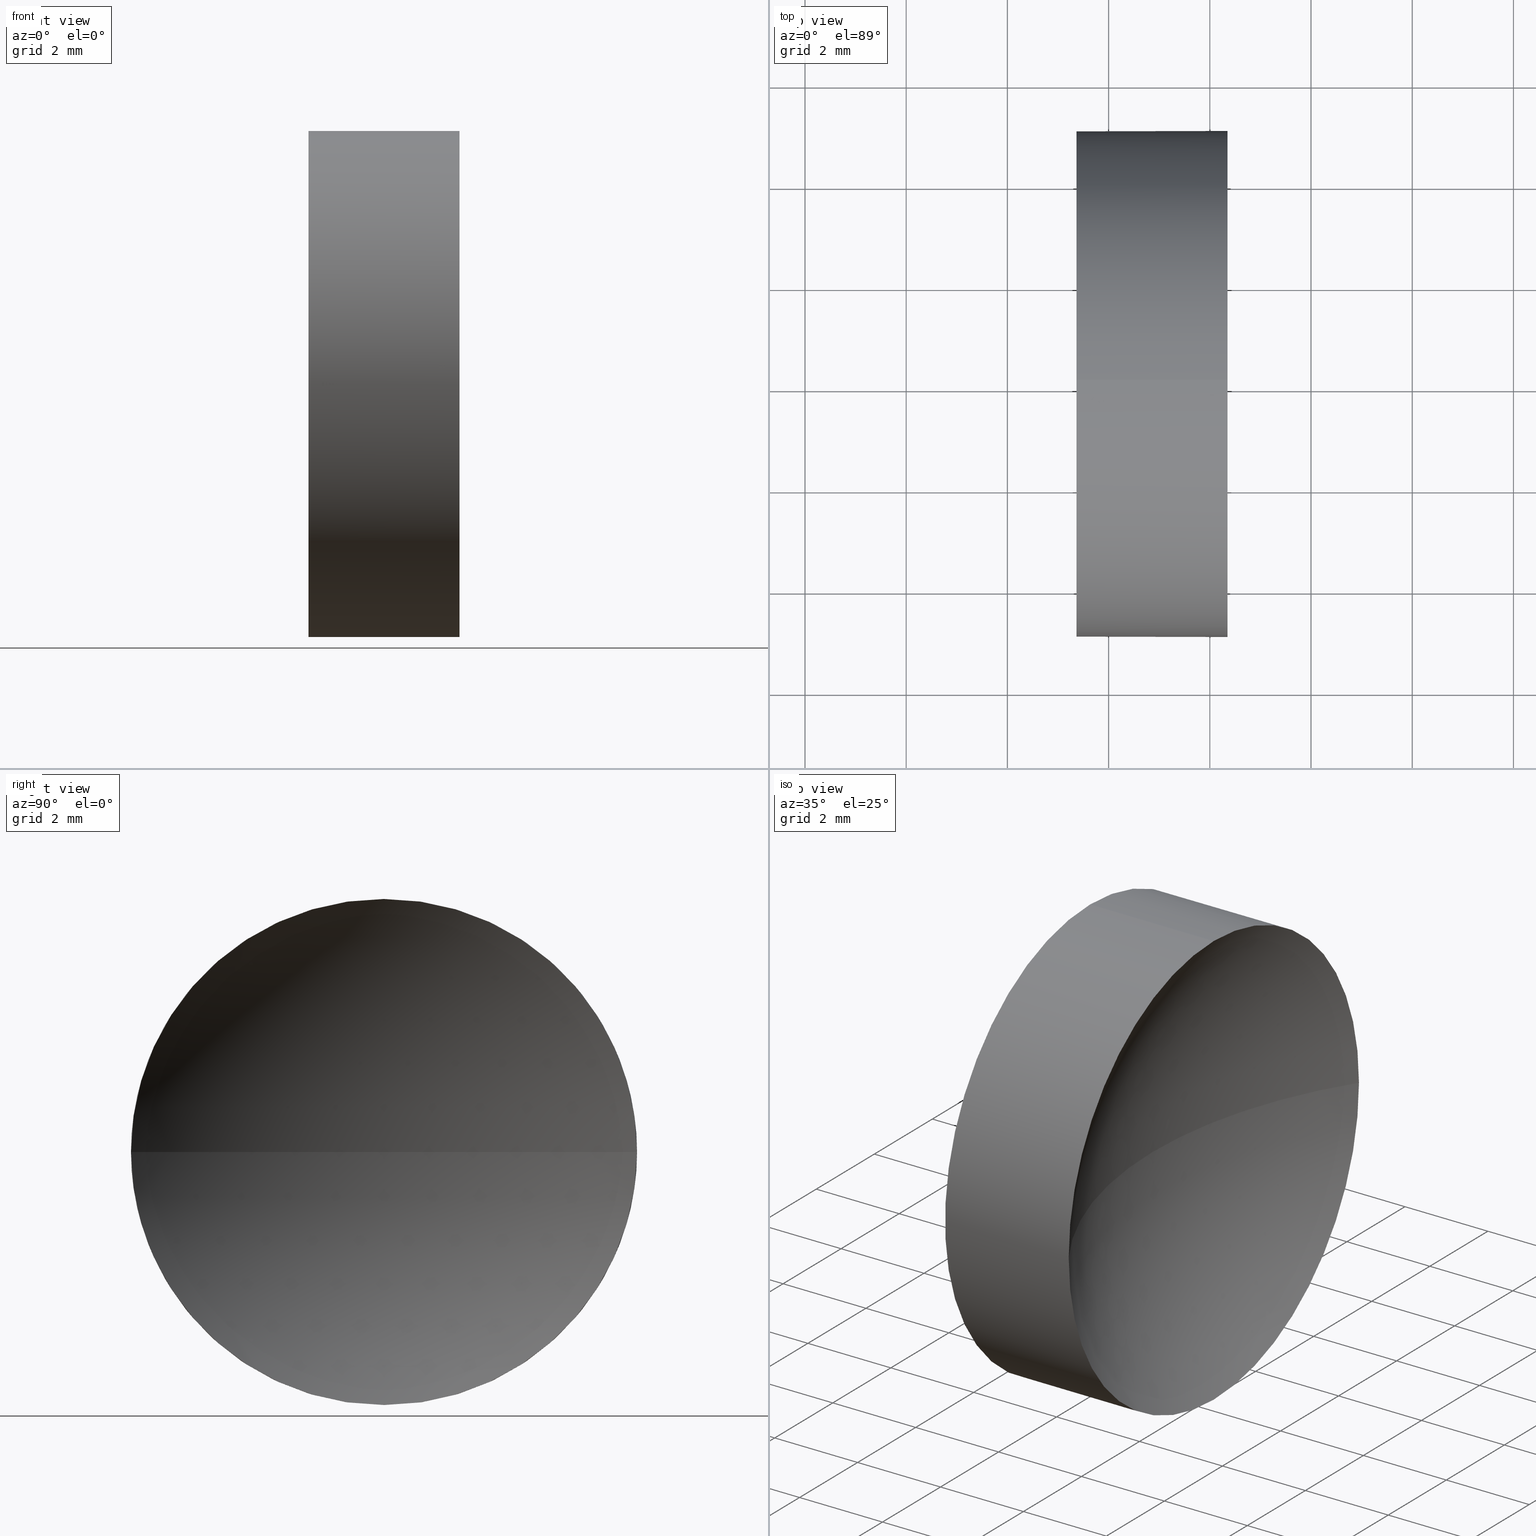
[diagram: canonical four-view strip — front | top / right | iso, engineering-drawing reading convention]
A machine part, canonical four-view strip (front | top / right | iso — engineering-drawing reading convention). The complete STEP part file that produces these views, byte-faithful:
ISO-10303-21;
HEADER;
FILE_DESCRIPTION (( 'STEP AP214' ),
    '1' );
FILE_NAME ('120253.STEP',
    '2019-06-24T09:12:50',
    ( '' ),
    ( '' ),
    'SwSTEP 2.0',
    'SolidWorks 2016',
    '' );
FILE_SCHEMA (( 'AUTOMOTIVE_DESIGN' ));
ENDSEC;

DATA;
#1 = DIRECTION ( 'NONE',  ( -1.000000000000000000, 0.0000000000000000000, 0.0000000000000000000 ) ) ;
#2 = DIRECTION ( 'NONE',  ( -1.000000000000000000, -0.0000000000000000000, -0.0000000000000000000 ) ) ;
#3 = CARTESIAN_POINT ( 'NONE',  ( 44.34889685878980000, 26.06225218280608000, 0.0000000000000000000 ) ) ;
#4 = PRODUCT_DEFINITION_SHAPE ( 'NONE', 'NONE',  #165 ) ;
#5 = MECHANICAL_DESIGN_GEOMETRIC_PRESENTATION_REPRESENTATION (  '', ( #31 ), #41 ) ;
#6 = FILL_AREA_STYLE ('',( #37 ) ) ;
#7 = AXIS2_PLACEMENT_3D ( 'NONE', #131, #122, #137 ) ;
#8 = UNCERTAINTY_MEASURE_WITH_UNIT (LENGTH_MEASURE( 1.000000000000000100E-005 ), #132, 'distance_accuracy_value', 'NONE');
#9 = ADVANCED_FACE ( 'NONE', ( #36 ), #98, .F. ) ;
#10 = PRODUCT_DEFINITION_CONTEXT ( 'detailed design', #19, 'design' ) ;
#11 = VERTEX_POINT ( 'NONE', #69 ) ;
#12 = CARTESIAN_POINT ( 'NONE',  ( 41.36582732549757700, 26.06225218280608000, 0.0000000000000000000 ) ) ;
#13 = AXIS2_PLACEMENT_3D ( 'NONE', #151, #124, #107 ) ;
#14 = DIRECTION ( 'NONE',  ( 0.0000000000000000000, 0.0000000000000000000, 1.000000000000000000 ) ) ;
#15 = ORIENTED_EDGE ( 'NONE', *, *, #160, .T. ) ;
#16 = APPLICATION_PROTOCOL_DEFINITION ( 'draft international standard', 'automotive_design', 1998, #93 ) ;
#17 = EDGE_LOOP ( 'NONE', ( #64, #158, #82, #166 ) ) ;
#18 = DIRECTION ( 'NONE',  ( 0.0000000000000000000, -1.224646799147353200E-016, 1.000000000000000000 ) ) ;
#19 = APPLICATION_CONTEXT ( 'automotive_design' ) ;
#20 = ORIENTED_EDGE ( 'NONE', *, *, #45, .T. ) ;
#21 = ORIENTED_EDGE ( 'NONE', *, *, #141, .F. ) ;
#22 = AXIS2_PLACEMENT_3D ( 'NONE', #12, #118, #14 ) ;
#23 = ORIENTED_EDGE ( 'NONE', *, *, #45, .F. ) ;
#24 = DIRECTION ( 'NONE',  ( 1.000000000000000000, 0.0000000000000000000, 0.0000000000000000000 ) ) ;
#25 = ORIENTED_EDGE ( 'NONE', *, *, #87, .F. ) ;
#26 = DIRECTION ( 'NONE',  ( 0.0000000000000000000, 0.0000000000000000000, 1.000000000000000000 ) ) ;
#27 = PLANE ( 'NONE',  #129 ) ;
#28 = VERTEX_POINT ( 'NONE', #72 ) ;
#29 =( NAMED_UNIT ( * ) SI_UNIT ( $, .STERADIAN. ) SOLID_ANGLE_UNIT ( ) );
#30 = ORIENTED_EDGE ( 'NONE', *, *, #87, .T. ) ;
#31 = STYLED_ITEM ( 'NONE', ( #153 ), #92 ) ;
#32 =( NAMED_UNIT ( * ) PLANE_ANGLE_UNIT ( ) SI_UNIT ( $, .RADIAN. ) );
#33 = SURFACE_SIDE_STYLE ('',( #156 ) ) ;
#34 = AXIS2_PLACEMENT_3D ( 'NONE', #150, #18, #78 ) ;
#35 = VECTOR ( 'NONE', #2, 1000.000000000000000 ) ;
#36 = FACE_OUTER_BOUND ( 'NONE', #17, .T. ) ;
#37 = FILL_AREA_STYLE_COLOUR ( '', #146 ) ;
#38 = FACE_OUTER_BOUND ( 'NONE', #59, .T. ) ;
#39 = CARTESIAN_POINT ( 'NONE',  ( 44.34889685878980000, 26.06225218280608000, -4.999999999999993800 ) ) ;
#40 = CARTESIAN_POINT ( 'NONE',  ( 44.34889685878980000, 31.06225218280607300, 6.123233995736756400E-016 ) ) ;
#41 =( GEOMETRIC_REPRESENTATION_CONTEXT ( 3 ) GLOBAL_UNCERTAINTY_ASSIGNED_CONTEXT ( ( #174 ) ) GLOBAL_UNIT_ASSIGNED_CONTEXT ( ( #110, #32, #29 ) ) REPRESENTATION_CONTEXT ( 'NONE', 'WORKASPACE' ) );
#42 = AXIS2_PLACEMENT_3D ( 'NONE', #169, #148, #106 ) ;
#43 = DIRECTION ( 'NONE',  ( 0.0000000000000000000, -1.000000000000000000, 0.0000000000000000000 ) ) ;
#44 = DIRECTION ( 'NONE',  ( -1.000000000000000000, -0.0000000000000000000, -0.0000000000000000000 ) ) ;
#45 = EDGE_CURVE ( 'NONE', #108, #97, #154, .T. ) ;
#46 =( LENGTH_UNIT ( ) NAMED_UNIT ( * ) SI_UNIT ( .MILLI., .METRE. ) );
#47 = CARTESIAN_POINT ( 'NONE',  ( 39.73650001336414300, 26.06225218280608000, 0.0000000000000000000 ) ) ;
#48 =( NAMED_UNIT ( * ) SI_UNIT ( $, .STERADIAN. ) SOLID_ANGLE_UNIT ( ) );
#49 = CYLINDRICAL_SURFACE ( 'NONE', #135, 4.999999999999995600 ) ;
#50 = PRESENTATION_LAYER_ASSIGNMENT (  '', '', ( #31 ) ) ;
#51 = AXIS2_PLACEMENT_3D ( 'NONE', #86, #184, #71 ) ;
#52 = AXIS2_PLACEMENT_3D ( 'NONE', #53, #143, #1 ) ;
#53 = CARTESIAN_POINT ( 'NONE',  ( 52.03582732549756400, 26.06225218280608000, 0.0000000000000000000 ) ) ;
#54 = ORIENTED_EDGE ( 'NONE', *, *, #96, .F. ) ;
#55 = CARTESIAN_POINT ( 'NONE',  ( 39.73650001336414300, 26.06225218280608000, 4.999999999999995600 ) ) ;
#56 = CARTESIAN_POINT ( 'NONE',  ( 44.34889685878980000, 21.06225218280608800, 0.0000000000000000000 ) ) ;
#57 = ORIENTED_EDGE ( 'NONE', *, *, #119, .F. ) ;
#58 = ADVANCED_FACE ( 'NONE', ( #176 ), #138, .F. ) ;
#59 = EDGE_LOOP ( 'NONE', ( #102, #20 ) ) ;
#60 =( NAMED_UNIT ( * ) PLANE_ANGLE_UNIT ( ) SI_UNIT ( $, .RADIAN. ) );
#61 = DIRECTION ( 'NONE',  ( 0.0000000000000000000, 0.0000000000000000000, 1.000000000000000000 ) ) ;
#62 = STYLED_ITEM ( 'NONE', ( #73 ), #161 ) ;
#63 = FILL_AREA_STYLE ('',( #136 ) ) ;
#64 = ORIENTED_EDGE ( 'NONE', *, *, #160, .F. ) ;
#65 = ORIENTED_EDGE ( 'NONE', *, *, #141, .T. ) ;
#66 = EDGE_CURVE ( 'NONE', #97, #108, #180, .T. ) ;
#67 = ORIENTED_EDGE ( 'NONE', *, *, #66, .F. ) ;
#68 = EDGE_LOOP ( 'NONE', ( #139, #15, #54, #21 ) ) ;
#69 = CARTESIAN_POINT ( 'NONE',  ( 42.86582732549757000, 26.06225218280608000, 0.0000000000000000000 ) ) ;
#70 = AXIS2_PLACEMENT_3D ( 'NONE', #47, #81, #172 ) ;
#71 = DIRECTION ( 'NONE',  ( 0.0000000000000000000, 0.0000000000000000000, 1.000000000000000000 ) ) ;
#72 = CARTESIAN_POINT ( 'NONE',  ( 44.34889685878980000, 26.06225218280608000, 4.999999999999993800 ) ) ;
#73 = PRESENTATION_STYLE_ASSIGNMENT (( #113 ) ) ;
#74 = PRESENTATION_LAYER_ASSIGNMENT (  '', '', ( #62 ) ) ;
#75 = FACE_OUTER_BOUND ( 'NONE', #128, .T. ) ;
#76 = PRODUCT_DEFINITION_FORMATION_WITH_SPECIFIED_SOURCE ( '�κ�', '', #163, .NOT_KNOWN. ) ;
#77 = SURFACE_SIDE_STYLE ('',( #111 ) ) ;
#78 = DIRECTION ( 'NONE',  ( 0.0000000000000000000, -1.000000000000000000, -1.224646799147353000E-016 ) ) ;
#79 = AXIS2_PLACEMENT_3D ( 'NONE', #164, #103, #43 ) ;
#80 = UNCERTAINTY_MEASURE_WITH_UNIT (LENGTH_MEASURE( 1.000000000000000100E-005 ), #46, 'distance_accuracy_value', 'NONE');
#81 = DIRECTION ( 'NONE',  ( -1.000000000000000000, -0.0000000000000000000, -0.0000000000000000000 ) ) ;
#82 = ORIENTED_EDGE ( 'NONE', *, *, #145, .F. ) ;
#83 = MECHANICAL_DESIGN_GEOMETRIC_PRESENTATION_REPRESENTATION (  '', ( #62 ), #94 ) ;
#84 = ORIENTED_EDGE ( 'NONE', *, *, #145, .T. ) ;
#85 = ADVANCED_FACE ( 'NONE', ( #75 ), #49, .T. ) ;
#86 = CARTESIAN_POINT ( 'NONE',  ( 41.36582732549757700, 26.06225218280608000, 0.0000000000000000000 ) ) ;
#87 = EDGE_CURVE ( 'NONE', #28, #97, #142, .T. ) ;
#88 = CARTESIAN_POINT ( 'NONE',  ( 41.36582732549757700, 26.06225218280608000, 4.999999999999997300 ) ) ;
#89 = CARTESIAN_POINT ( 'NONE',  ( 39.73650001336414300, 26.06225218280608000, -4.999999999999995600 ) ) ;
#90 = EDGE_LOOP ( 'NONE', ( #173, #177, #67, #25, #170 ) ) ;
#91 = PRODUCT_CONTEXT ( 'NONE', #93, 'mechanical' ) ;
#92 = ADVANCED_BREP_SHAPE_REPRESENTATION ( '120253', ( #161, #117 ), #159 ) ;
#93 = APPLICATION_CONTEXT ( 'automotive_design' ) ;
#94 =( GEOMETRIC_REPRESENTATION_CONTEXT ( 3 ) GLOBAL_UNCERTAINTY_ASSIGNED_CONTEXT ( ( #80 ) ) GLOBAL_UNIT_ASSIGNED_CONTEXT ( ( #46, #60, #48 ) ) REPRESENTATION_CONTEXT ( 'NONE', 'WORKASPACE' ) );
#95 = PRODUCT_RELATED_PRODUCT_CATEGORY ( 'part', '', ( #163 ) ) ;
#96 = EDGE_CURVE ( 'NONE', #134, #11, #179, .T. ) ;
#97 = VERTEX_POINT ( 'NONE', #88 ) ;
#98 = SPHERICAL_SURFACE ( 'NONE', #79, 9.169999999999998200 ) ;
#99 = ADVANCED_FACE ( 'NONE', ( #38 ), #27, .F. ) ;
#100 = VERTEX_POINT ( 'NONE', #40 ) ;
#101 = CARTESIAN_POINT ( 'NONE',  ( 39.73650001336414300, 26.06225218280608000, 0.0000000000000000000 ) ) ;
#102 = ORIENTED_EDGE ( 'NONE', *, *, #66, .T. ) ;
#103 = DIRECTION ( 'NONE',  ( 0.0000000000000000000, 0.0000000000000000000, 1.000000000000000000 ) ) ;
#104 = CARTESIAN_POINT ( 'NONE',  ( 41.36582732549757700, 26.06225218280608000, 0.0000000000000000000 ) ) ;
#105 = CIRCLE ( 'NONE', #7, 4.999999999999993800 ) ;
#106 = DIRECTION ( 'NONE',  ( 0.0000000000000000000, 0.0000000000000000000, 1.000000000000000000 ) ) ;
#107 = DIRECTION ( 'NONE',  ( 0.0000000000000000000, 0.0000000000000000000, 1.000000000000000000 ) ) ;
#108 = VERTEX_POINT ( 'NONE', #157 ) ;
#109 = EDGE_CURVE ( 'NONE', #28, #100, #140, .T. ) ;
#110 =( LENGTH_UNIT ( ) NAMED_UNIT ( * ) SI_UNIT ( .MILLI., .METRE. ) );
#111 = SURFACE_STYLE_FILL_AREA ( #63 ) ;
#112 = CIRCLE ( 'NONE', #13, 4.999999999999993800 ) ;
#113 = SURFACE_STYLE_USAGE ( .BOTH. , #33 ) ;
#114 = SHAPE_DEFINITION_REPRESENTATION ( #4, #92 ) ;
#115 = LINE ( 'NONE', #89, #35 ) ;
#116 = VERTEX_POINT ( 'NONE', #39 ) ;
#117 = AXIS2_PLACEMENT_3D ( 'NONE', #152, #61, #133 ) ;
#118 = DIRECTION ( 'NONE',  ( -1.000000000000000000, -0.0000000000000000000, -0.0000000000000000000 ) ) ;
#119 = EDGE_CURVE ( 'NONE', #116, #108, #115, .T. ) ;
#120 = DIRECTION ( 'NONE',  ( 0.0000000000000000000, -1.000000000000000000, 0.0000000000000000000 ) ) ;
#121 = CIRCLE ( 'NONE', #178, 4.999999999999993800 ) ;
#122 = DIRECTION ( 'NONE',  ( -1.000000000000000000, -0.0000000000000000000, -0.0000000000000000000 ) ) ;
#123 = DIRECTION ( 'NONE',  ( 0.0000000000000000000, 0.0000000000000000000, 1.000000000000000000 ) ) ;
#124 = DIRECTION ( 'NONE',  ( -1.000000000000000000, -0.0000000000000000000, -0.0000000000000000000 ) ) ;
#125 =( NAMED_UNIT ( * ) PLANE_ANGLE_UNIT ( ) SI_UNIT ( $, .RADIAN. ) );
#126 = APPLICATION_PROTOCOL_DEFINITION ( 'draft international standard', 'automotive_design', 1998, #19 ) ;
#127 =( NAMED_UNIT ( * ) SI_UNIT ( $, .STERADIAN. ) SOLID_ANGLE_UNIT ( ) );
#128 = EDGE_LOOP ( 'NONE', ( #57, #65, #84, #30, #23 ) ) ;
#129 = AXIS2_PLACEMENT_3D ( 'NONE', #104, #24, #130 ) ;
#130 = DIRECTION ( 'NONE',  ( 0.0000000000000000000, 0.0000000000000000000, -1.000000000000000000 ) ) ;
#131 = CARTESIAN_POINT ( 'NONE',  ( 44.34889685878980000, 26.06225218280608000, 0.0000000000000000000 ) ) ;
#132 =( LENGTH_UNIT ( ) NAMED_UNIT ( * ) SI_UNIT ( .MILLI., .METRE. ) );
#133 = DIRECTION ( 'NONE',  ( 1.000000000000000000, 0.0000000000000000000, 0.0000000000000000000 ) ) ;
#134 = VERTEX_POINT ( 'NONE', #56 ) ;
#135 = AXIS2_PLACEMENT_3D ( 'NONE', #101, #162, #185 ) ;
#136 = FILL_AREA_STYLE_COLOUR ( '', #186 ) ;
#137 = DIRECTION ( 'NONE',  ( 0.0000000000000000000, 0.0000000000000000000, 1.000000000000000000 ) ) ;
#138 = SPHERICAL_SURFACE ( 'NONE', #167, 9.169999999999998200 ) ;
#139 = ORIENTED_EDGE ( 'NONE', *, *, #155, .F. ) ;
#140 = CIRCLE ( 'NONE', #42, 4.999999999999993800 ) ;
#141 = EDGE_CURVE ( 'NONE', #116, #134, #121, .T. ) ;
#142 = LINE ( 'NONE', #55, #147 ) ;
#143 = DIRECTION ( 'NONE',  ( 0.0000000000000000000, 0.0000000000000000000, -1.000000000000000000 ) ) ;
#144 = CLOSED_SHELL ( 'NONE', ( #181, #58, #9, #85, #99 ) ) ;
#145 = EDGE_CURVE ( 'NONE', #134, #28, #105, .T. ) ;
#146 = COLOUR_RGB ( '',1.000000000000000000, 1.000000000000000000, 1.000000000000000000 ) ;
#147 = VECTOR ( 'NONE', #168, 1000.000000000000000 ) ;
#148 = DIRECTION ( 'NONE',  ( -1.000000000000000000, -0.0000000000000000000, -0.0000000000000000000 ) ) ;
#149 = CYLINDRICAL_SURFACE ( 'NONE', #70, 4.999999999999995600 ) ;
#150 = CARTESIAN_POINT ( 'NONE',  ( 52.03582732549756400, 26.06225218280608000, 0.0000000000000000000 ) ) ;
#151 = CARTESIAN_POINT ( 'NONE',  ( 44.34889685878980000, 26.06225218280608000, 0.0000000000000000000 ) ) ;
#152 = CARTESIAN_POINT ( 'NONE',  ( 0.0000000000000000000, 0.0000000000000000000, 0.0000000000000000000 ) ) ;
#153 = PRESENTATION_STYLE_ASSIGNMENT (( #171 ) ) ;
#154 = CIRCLE ( 'NONE', #22, 4.999999999999997300 ) ;
#155 = EDGE_CURVE ( 'NONE', #100, #116, #112, .T. ) ;
#156 = SURFACE_STYLE_FILL_AREA ( #6 ) ;
#157 = CARTESIAN_POINT ( 'NONE',  ( 41.36582732549757700, 26.06225218280608000, -4.999999999999998200 ) ) ;
#158 = ORIENTED_EDGE ( 'NONE', *, *, #109, .F. ) ;
#159 =( GEOMETRIC_REPRESENTATION_CONTEXT ( 3 ) GLOBAL_UNCERTAINTY_ASSIGNED_CONTEXT ( ( #8 ) ) GLOBAL_UNIT_ASSIGNED_CONTEXT ( ( #132, #125, #127 ) ) REPRESENTATION_CONTEXT ( 'NONE', 'WORKASPACE' ) );
#160 = EDGE_CURVE ( 'NONE', #100, #11, #175, .T. ) ;
#161 = MANIFOLD_SOLID_BREP ( '��ת1', #144 ) ;
#162 = DIRECTION ( 'NONE',  ( -1.000000000000000000, -0.0000000000000000000, -0.0000000000000000000 ) ) ;
#163 = PRODUCT ( '120253', '120253', '', ( #91 ) ) ;
#164 = CARTESIAN_POINT ( 'NONE',  ( 52.03582732549756400, 26.06225218280608000, 0.0000000000000000000 ) ) ;
#165 = PRODUCT_DEFINITION ( 'δ֪', '', #76, #10 ) ;
#166 = ORIENTED_EDGE ( 'NONE', *, *, #96, .T. ) ;
#167 = AXIS2_PLACEMENT_3D ( 'NONE', #183, #26, #120 ) ;
#168 = DIRECTION ( 'NONE',  ( -1.000000000000000000, -0.0000000000000000000, -0.0000000000000000000 ) ) ;
#169 = CARTESIAN_POINT ( 'NONE',  ( 44.34889685878980000, 26.06225218280608000, 0.0000000000000000000 ) ) ;
#170 = ORIENTED_EDGE ( 'NONE', *, *, #109, .T. ) ;
#171 = SURFACE_STYLE_USAGE ( .BOTH. , #77 ) ;
#172 = DIRECTION ( 'NONE',  ( 0.0000000000000000000, 0.0000000000000000000, 1.000000000000000000 ) ) ;
#173 = ORIENTED_EDGE ( 'NONE', *, *, #155, .T. ) ;
#174 = UNCERTAINTY_MEASURE_WITH_UNIT (LENGTH_MEASURE( 1.000000000000000100E-005 ), #110, 'distance_accuracy_value', 'NONE');
#175 = CIRCLE ( 'NONE', #34, 9.169999999999998200 ) ;
#176 = FACE_OUTER_BOUND ( 'NONE', #68, .T. ) ;
#177 = ORIENTED_EDGE ( 'NONE', *, *, #119, .T. ) ;
#178 = AXIS2_PLACEMENT_3D ( 'NONE', #3, #44, #123 ) ;
#179 = CIRCLE ( 'NONE', #52, 9.169999999999998200 ) ;
#180 = CIRCLE ( 'NONE', #51, 4.999999999999997300 ) ;
#181 = ADVANCED_FACE ( 'NONE', ( #182 ), #149, .T. ) ;
#182 = FACE_OUTER_BOUND ( 'NONE', #90, .T. ) ;
#183 = CARTESIAN_POINT ( 'NONE',  ( 52.03582732549756400, 26.06225218280608000, 0.0000000000000000000 ) ) ;
#184 = DIRECTION ( 'NONE',  ( -1.000000000000000000, -0.0000000000000000000, -0.0000000000000000000 ) ) ;
#185 = DIRECTION ( 'NONE',  ( 0.0000000000000000000, 0.0000000000000000000, 1.000000000000000000 ) ) ;
#186 = COLOUR_RGB ( '',1.000000000000000000, 1.000000000000000000, 1.000000000000000000 ) ;
ENDSEC;
END-ISO-10303-21;
